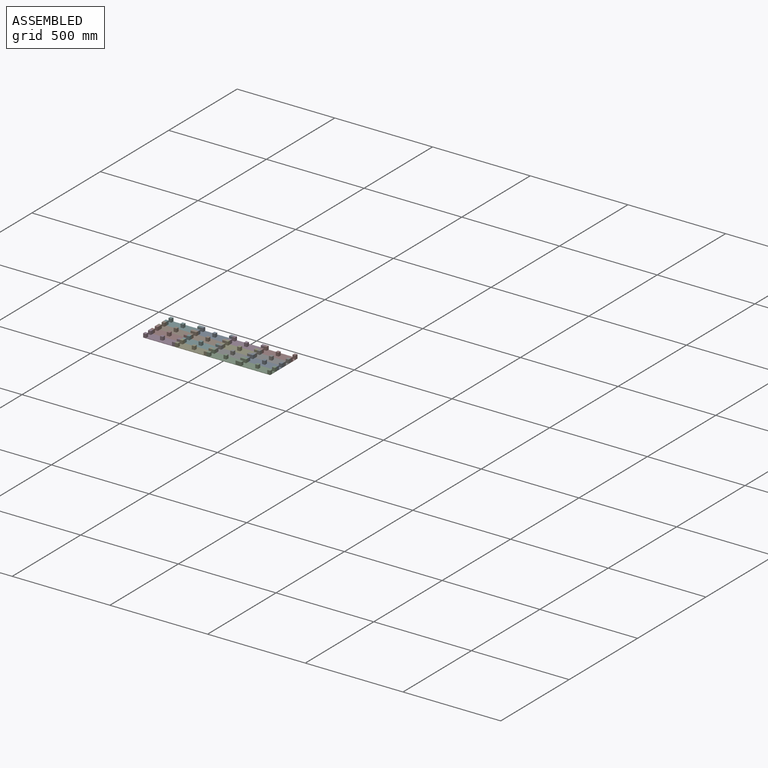
[diagram: assembled view]
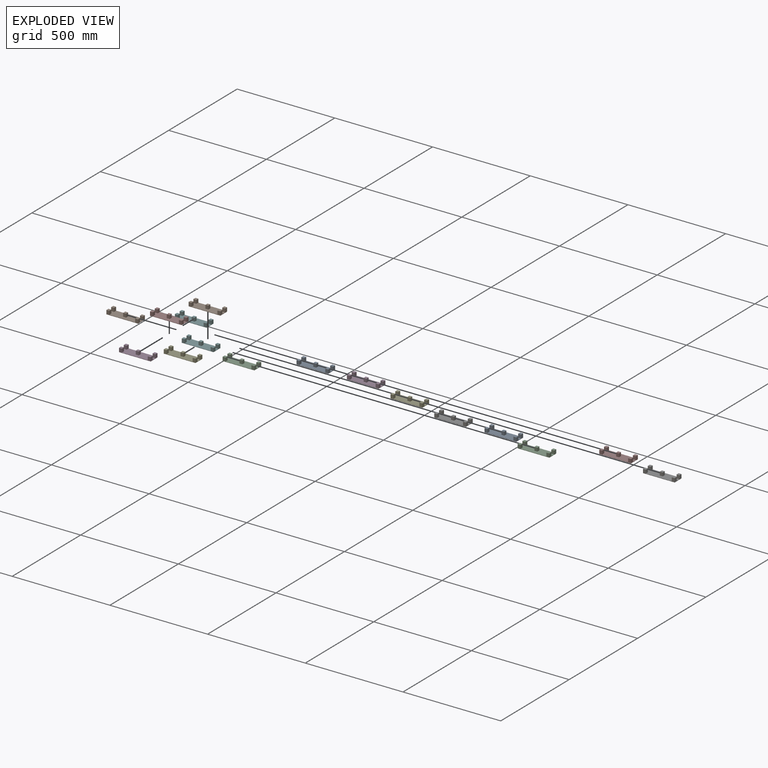
[diagram: exploded view]
GUIDED TOUR — MATED ASSEMBLY (Onshape document 43a5d662e0f2bef0330cf0e0, AutoMate assembly 43a5d662e0f2bef0330cf0e0_22efb81c4c36f7b227dcf2d1_d20b33c5dd49373e04170e35_default)

This assembly has 16 components, labeled P0..P15 below (a component is one placed occurrence of a part; the same part can appear more than once), held together by 15 mates. A mate is a constraint between two components; its type names the relative motion it leaves free:
  FASTENED — locks the two components together rigidly (no relative motion).
Axis/direction vectors are unit vectors and 'through' points are millimeter coordinates, both in the assembly's world frame.

MATES
  1. FASTENED "Fastened 6": P9 <-> P1, direction (1.000, 0.000, 0.000) through (266.22, 362.22, 58.80) mm
  2. FASTENED "Fastened 5": P7 <-> P13, direction (1.000, 0.000, 0.000) through (266.22, 312.22, 58.80) mm
  3. FASTENED "Fastened 7": P5 <-> P8, direction (1.000, 0.000, 0.000) through (266.22, 412.22, 58.80) mm
  4. FASTENED "Fastened 4": P11 <-> P12, direction (0.000, -1.000, 0.000) through (266.22, 262.22, 56.80) mm
  5. FASTENED "Fastened 1": P11 <-> P7, direction (0.000, 1.000, 0.000) through (184.97, 287.22, 64.04) mm
  6. FASTENED "Fastened 2": P7 <-> P9, direction (0.000, 1.000, 0.000) through (184.97, 337.22, 58.80) mm
  7. FASTENED "Fastened 10": P6 <-> P13, direction (-1.000, 0.000, 0.000) through (428.72, 312.22, 58.80) mm
  8. FASTENED "Fastened 3": P9 <-> P5, direction (0.000, 1.000, 0.000) through (184.97, 387.22, 58.80) mm
  9. FASTENED "Fastened 8": P8 <-> P3, direction (1.000, 0.000, 0.000) through (428.72, 412.22, 58.80) mm
  10. FASTENED "Fastened 15": P3 <-> P15, direction (1.000, 0.000, 0.000) through (591.22, 412.22, 58.80) mm
  11. FASTENED "Fastened 14": P4 <-> P14, direction (1.000, 0.000, 0.000) through (591.22, 362.22, 58.80) mm
  12. FASTENED "Fastened 11": P12 <-> P2, direction (1.000, 0.000, 0.000) through (428.72, 262.22, 58.80) mm
  13. FASTENED "Fastened 13": P6 <-> P0, direction (1.000, 0.000, 0.000) through (591.22, 312.22, 58.80) mm
  14. FASTENED "Fastened 9": P1 <-> P4, direction (1.000, 0.000, 0.000) through (428.72, 362.22, 58.80) mm
  15. FASTENED "Fastened 12": P2 <-> P10, direction (1.000, 0.000, 0.000) through (591.22, 262.22, 58.80) mm

ASSEMBLY ORDER
  1. P13 — the base component [order verified]
  2. P12 [order verified]
  3. P2 [order verified]
  4. P1 [order verified]
  5. P11 [order verified]
  6. P8 [order verified]
  7. P7 [order verified]
  8. P9 [order verified]
  9. P5 [order verified]
  10. P3 [order verified]
  11. P4 [order verified]
  12. P6 [order verified]
  13. P0 [order verified]
  14. P10 [order verified]
  15. P14 [order verified]
  16. P15 [order verified]
Order-tag legend:
  [order verified] — this step's position reverses a verified removal order: the component was checked to insert without passing through the ones already placed.

Of the 16 components, 16 carry the full construction recipe — the FeatureScript program that regenerates the part's solid from scratch; the rest are supplied as boundary geometry only.
Because this assembly has more than 12 components, the tour below covers the 12 most significant ones individually (every recipe-attached component first, then the largest by part volume), in assembly order; the remaining 4 are summarized together in a grouped section at the end.
Each toured component is shown spotlighted twice — in the assembled view, then in the exploded view, where a leader line traces a displaced component back to its assembled socket (saturated green if recipe-attached, orange if geometry-only; every other component desaturated gray) — followed by its recipe or geometry summary and the mates that hold it.
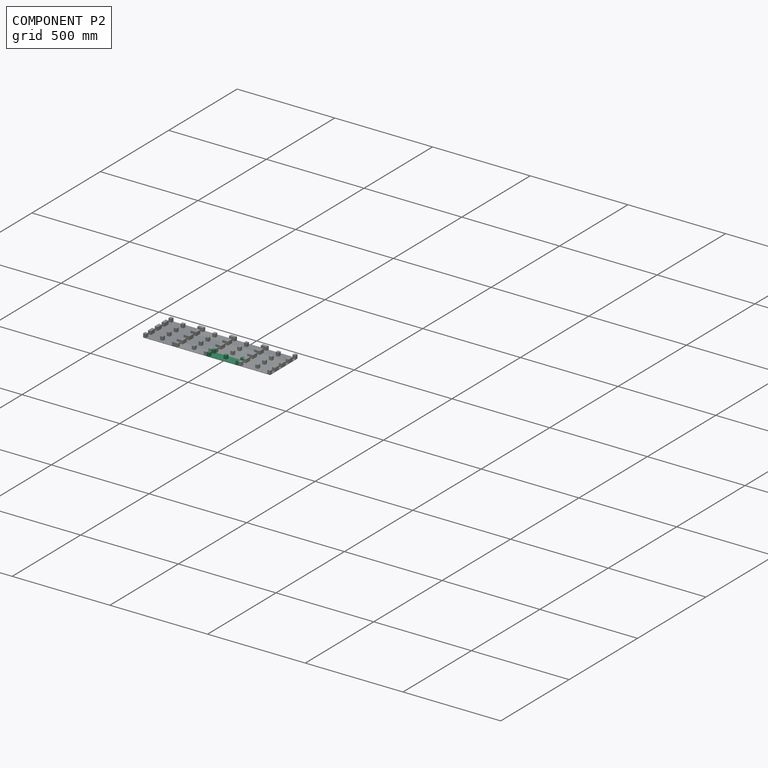
[diagram: component P2 — assembled]
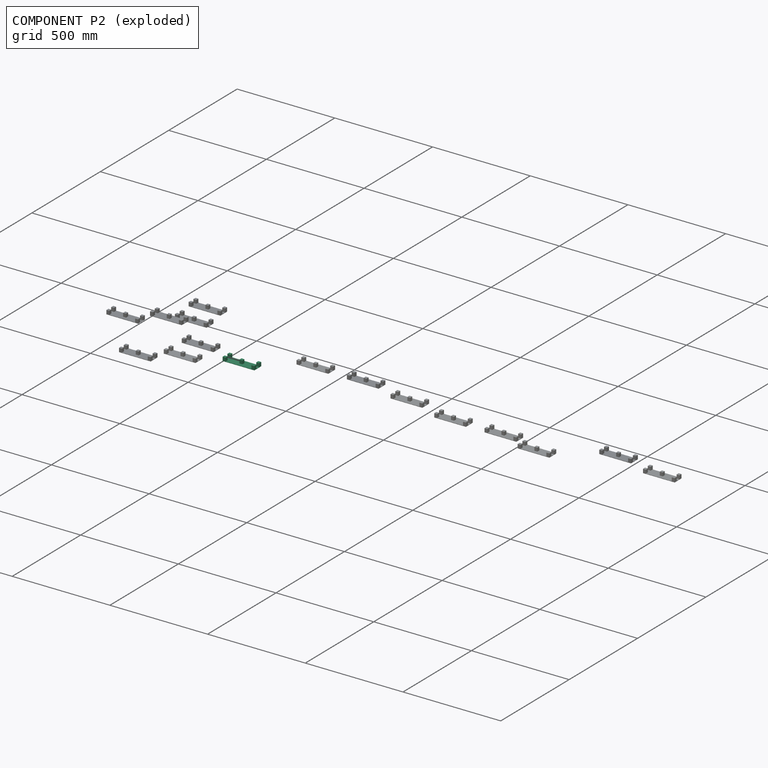
[diagram: component P2 — exploded]
COMPONENT P2 — same part as P0 (CADFS 00497150); its construction recipe is shown at P0.
Held by: FASTENED mate "Fastened 11" to P12; FASTENED mate "Fastened 12" to P10.
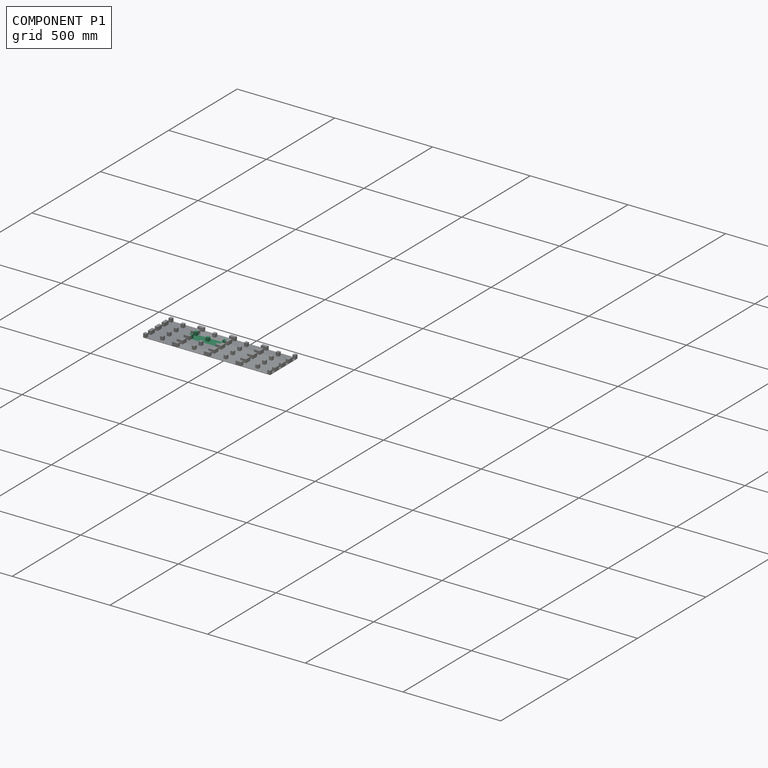
[diagram: component P1 — assembled]
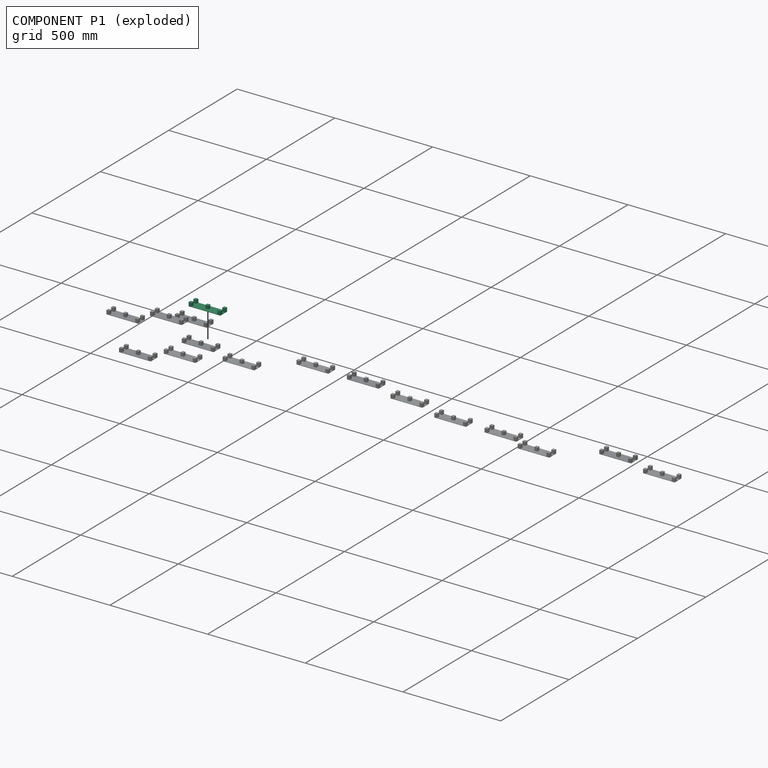
[diagram: component P1 — exploded]
COMPONENT P1 — same part as P0 (CADFS 00497150); its construction recipe is shown at P0.
Held by: FASTENED mate "Fastened 6" to P9; FASTENED mate "Fastened 9" to P4.
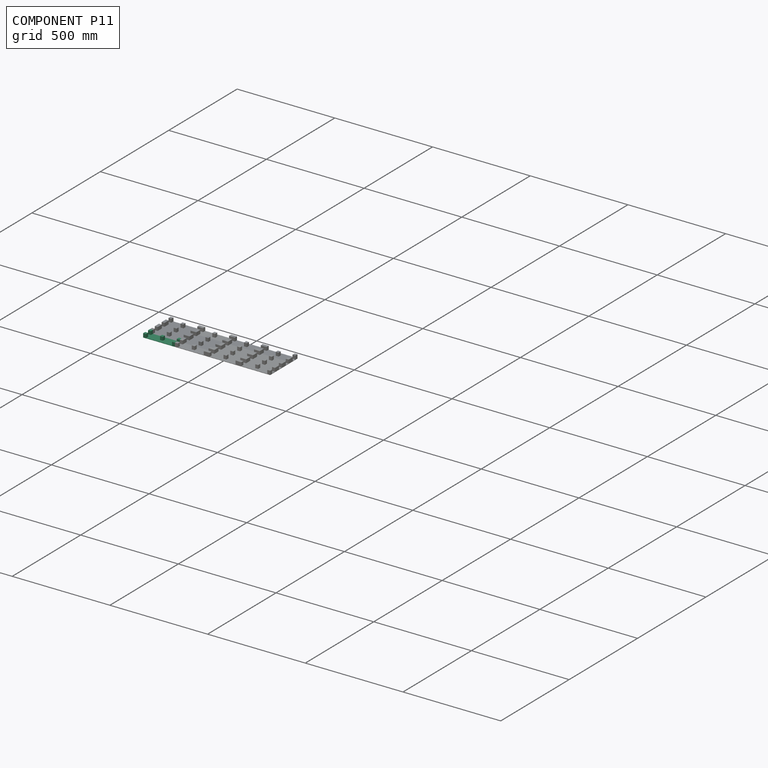
[diagram: component P11 — assembled]
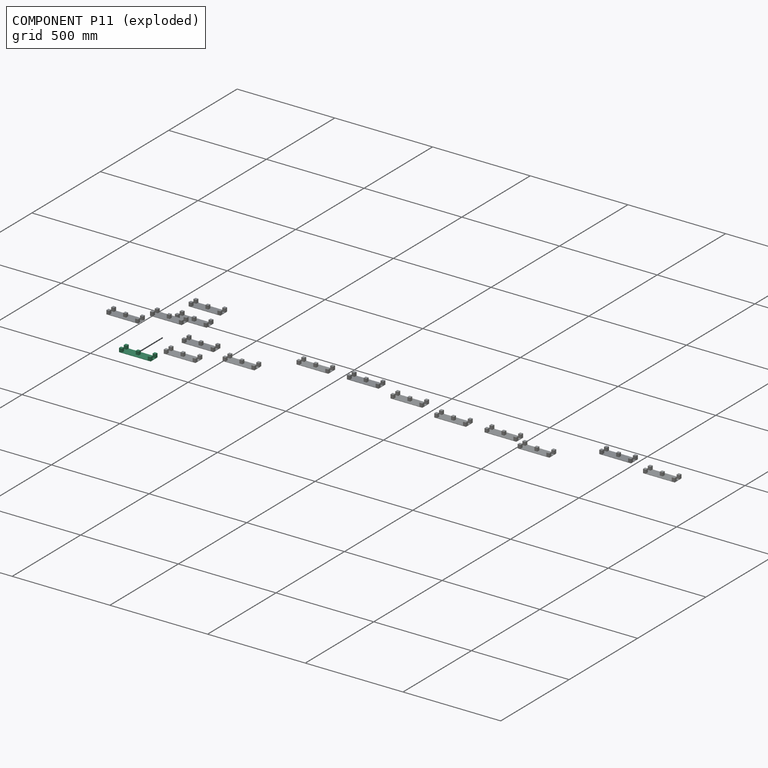
[diagram: component P11 — exploded]
COMPONENT P11 — same part as P0 (CADFS 00497150); its construction recipe is shown at P0.
Held by: FASTENED mate "Fastened 4" to P12; FASTENED mate "Fastened 1" to P7.
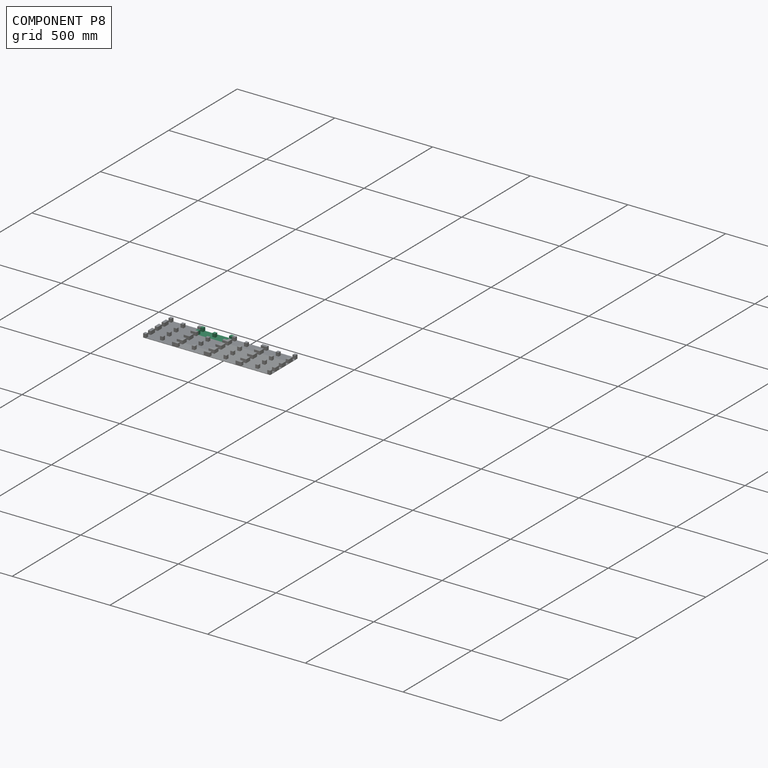
[diagram: component P8 — assembled]
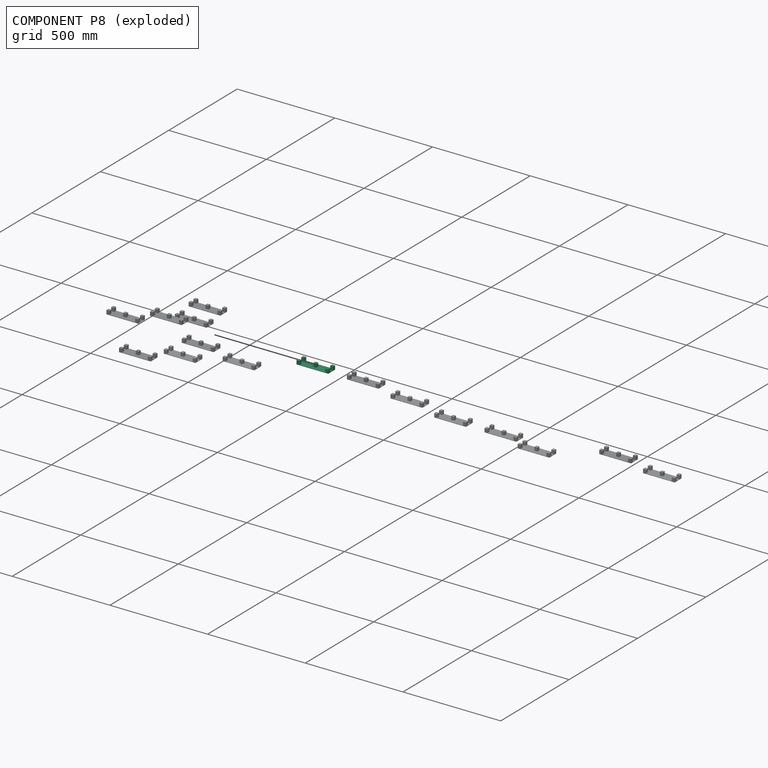
[diagram: component P8 — exploded]
COMPONENT P8 — same part as P0 (CADFS 00497150); its construction recipe is shown at P0.
Held by: FASTENED mate "Fastened 7" to P5; FASTENED mate "Fastened 8" to P3.
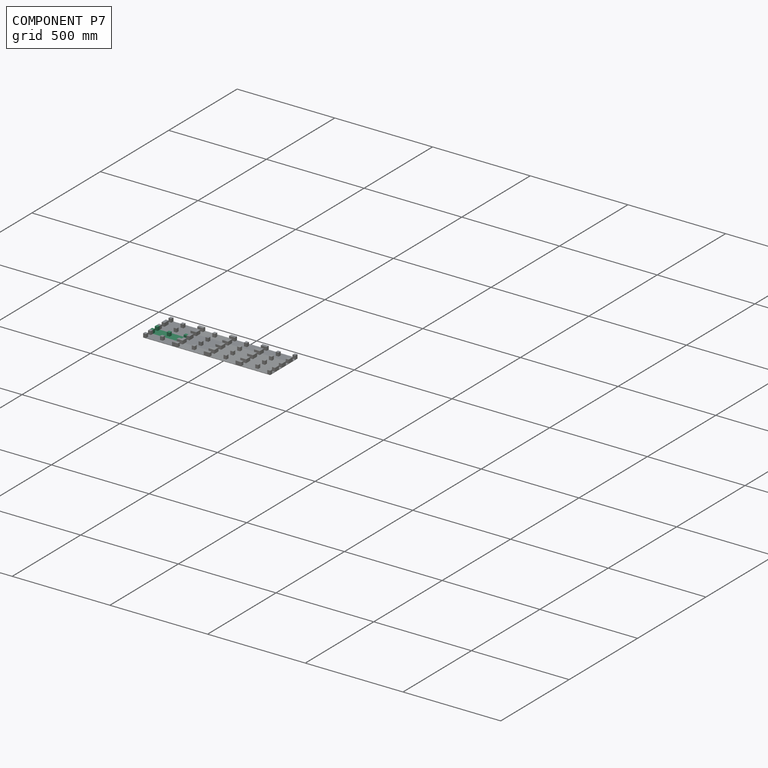
[diagram: component P7 — assembled]
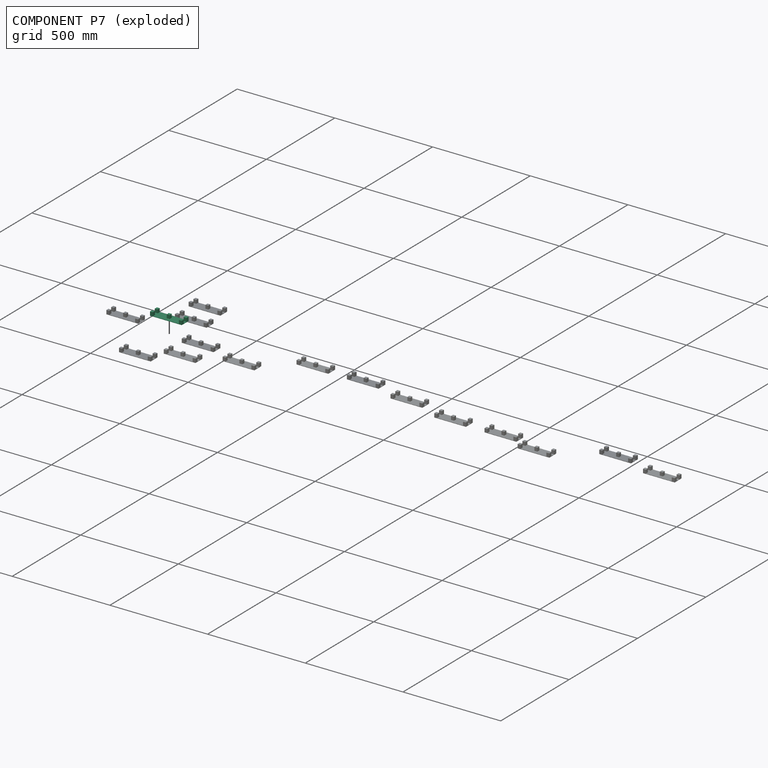
[diagram: component P7 — exploded]
COMPONENT P7 — same part as P0 (CADFS 00497150); its construction recipe is shown at P0.
Held by: FASTENED mate "Fastened 5" to P13; FASTENED mate "Fastened 1" to P11; FASTENED mate "Fastened 2" to P9.
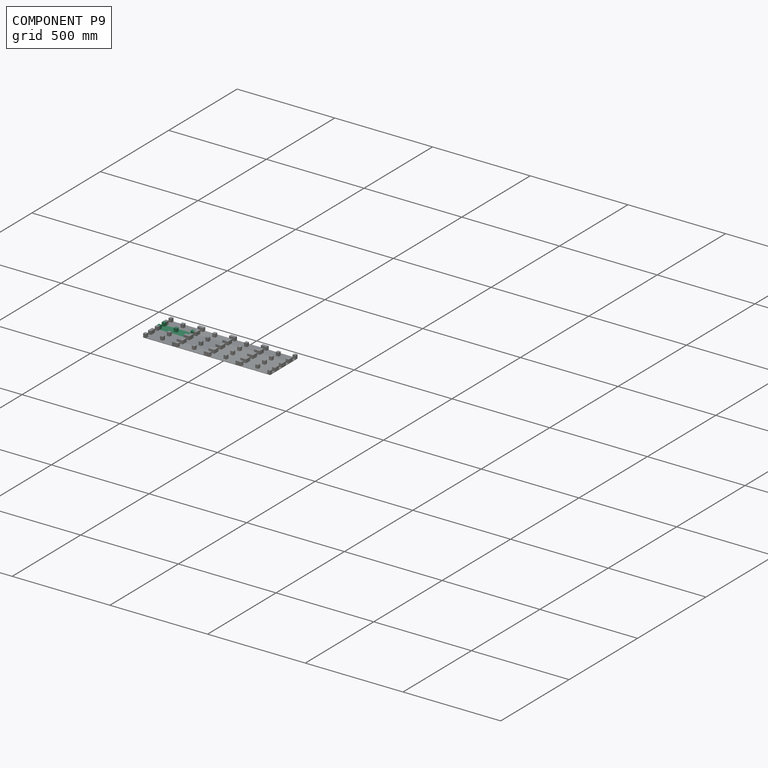
[diagram: component P9 — assembled]
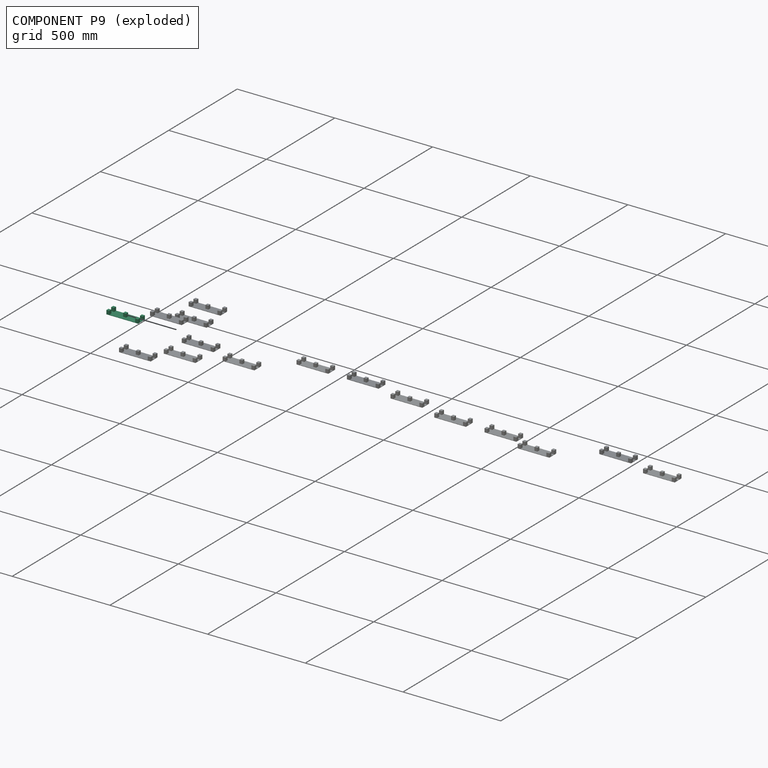
[diagram: component P9 — exploded]
COMPONENT P9 — same part as P0 (CADFS 00497150); its construction recipe is shown at P0.
Held by: FASTENED mate "Fastened 6" to P1; FASTENED mate "Fastened 2" to P7; FASTENED mate "Fastened 3" to P5.
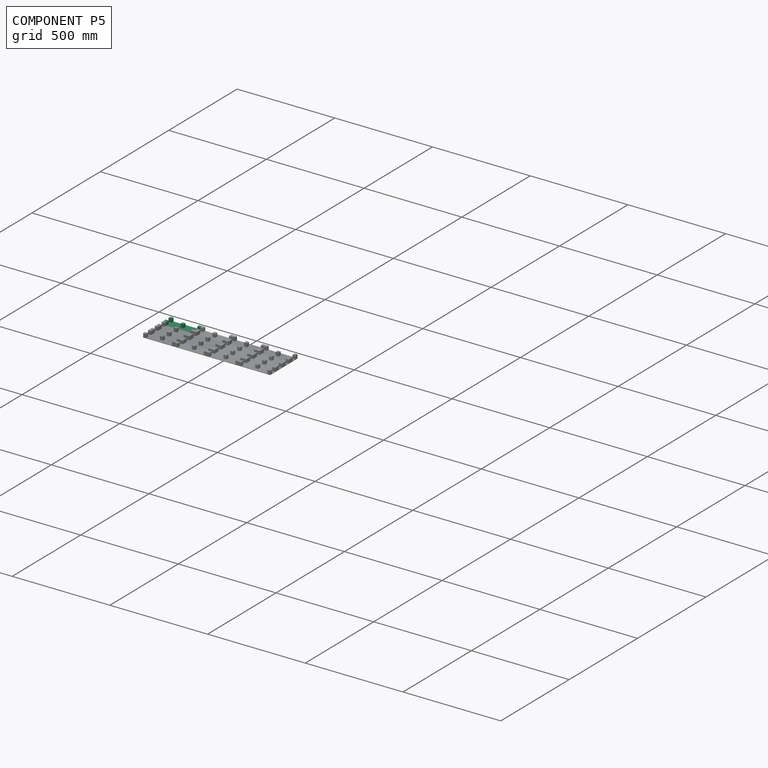
[diagram: component P5 — assembled]
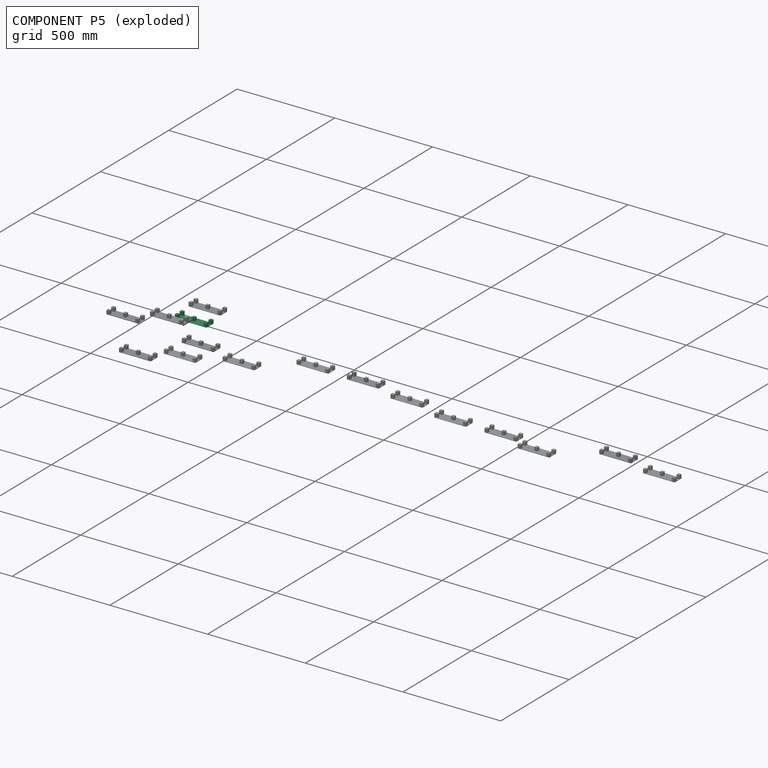
[diagram: component P5 — exploded]
COMPONENT P5 — same part as P0 (CADFS 00497150); its construction recipe is shown at P0.
Held by: FASTENED mate "Fastened 7" to P8; FASTENED mate "Fastened 3" to P9.
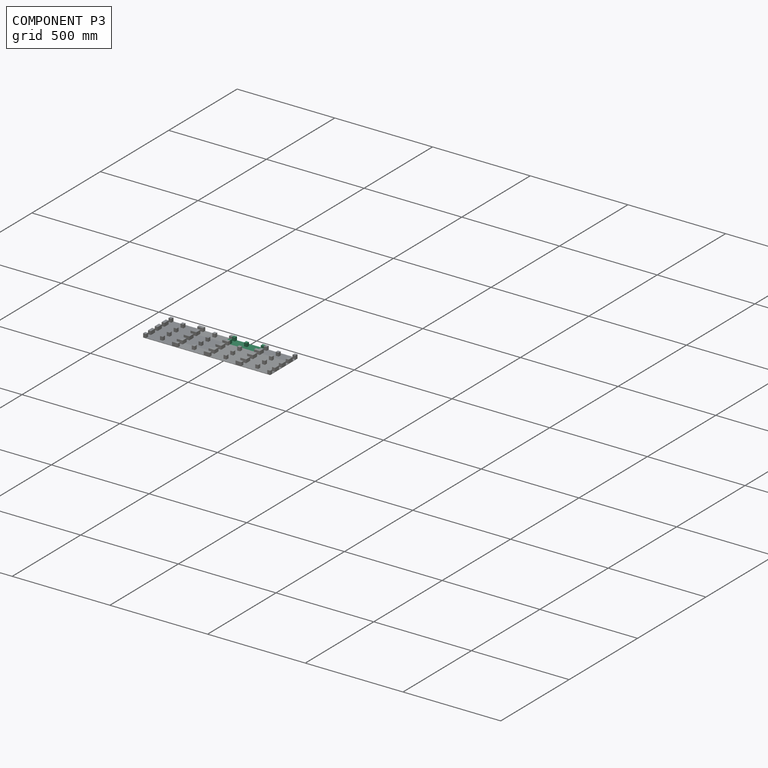
[diagram: component P3 — assembled]
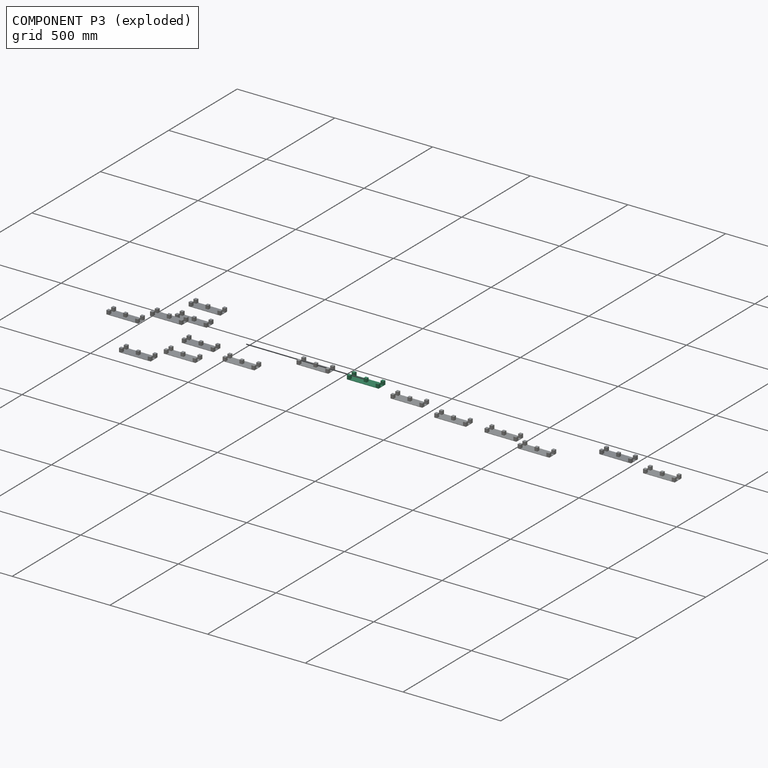
[diagram: component P3 — exploded]
COMPONENT P3 — same part as P0 (CADFS 00497150); its construction recipe is shown at P0.
Held by: FASTENED mate "Fastened 8" to P8; FASTENED mate "Fastened 15" to P15.
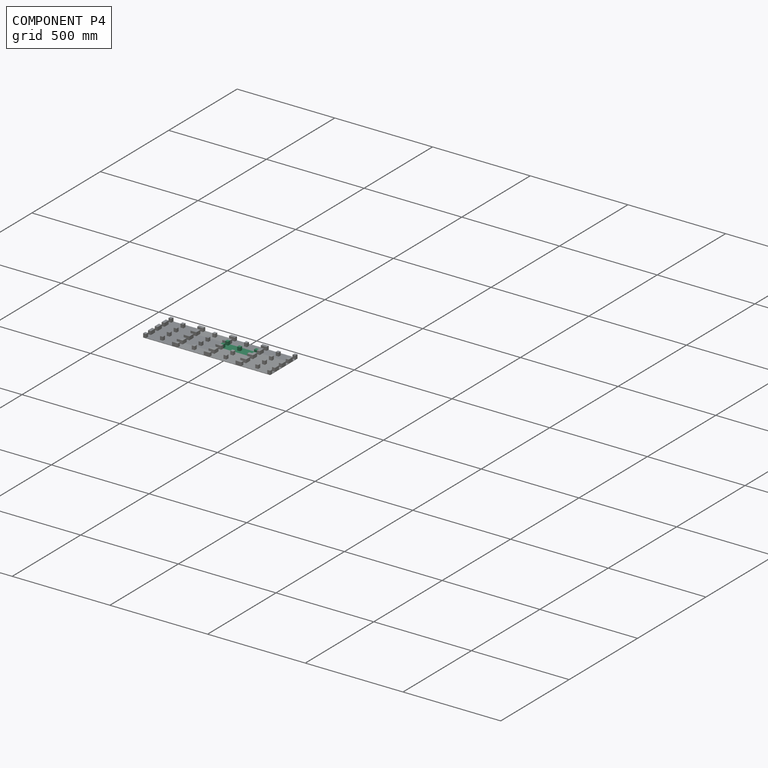
[diagram: component P4 — assembled]
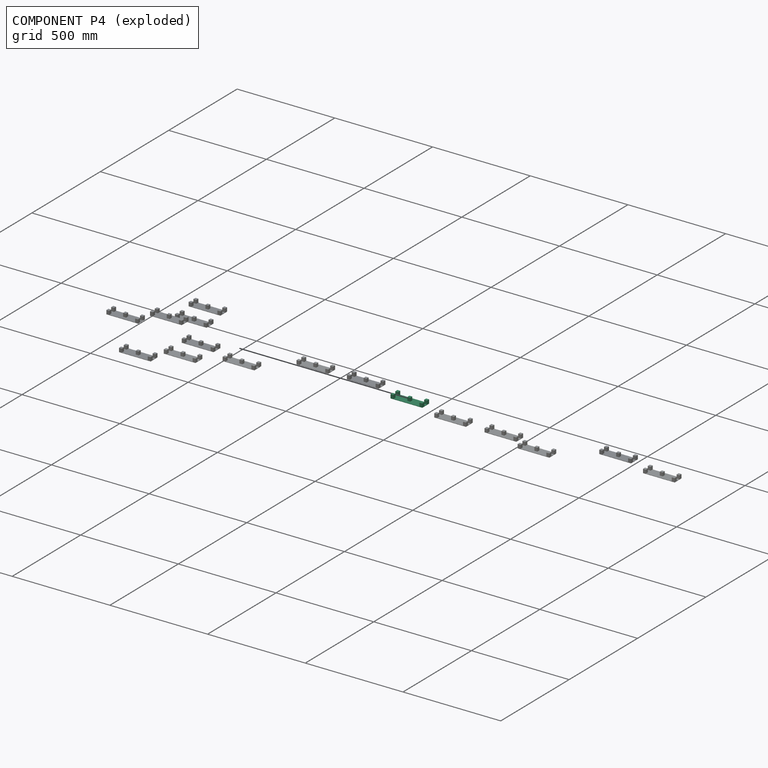
[diagram: component P4 — exploded]
COMPONENT P4 — same part as P0 (CADFS 00497150); its construction recipe is shown at P0.
Held by: FASTENED mate "Fastened 14" to P14; FASTENED mate "Fastened 9" to P1.
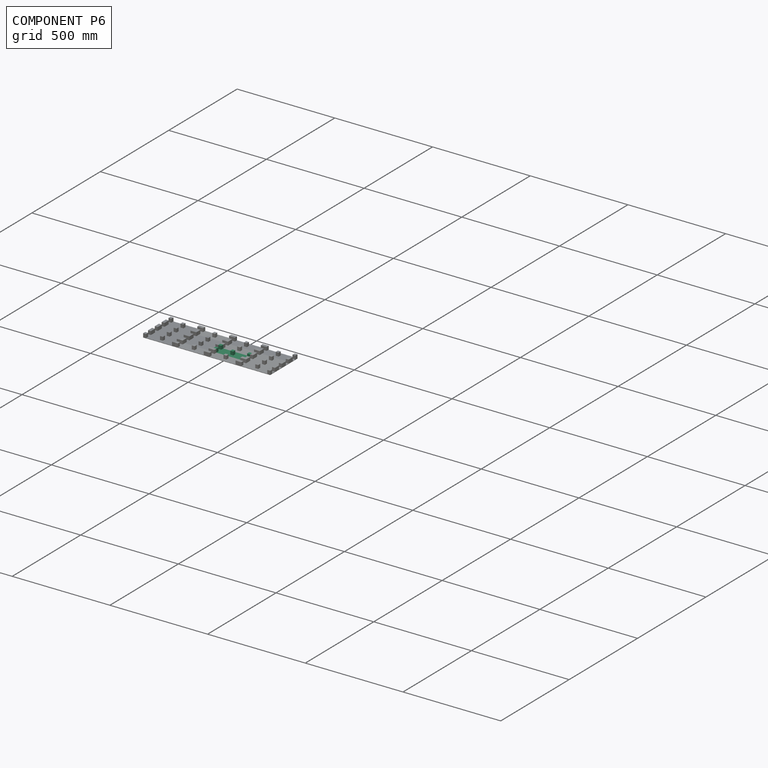
[diagram: component P6 — assembled]
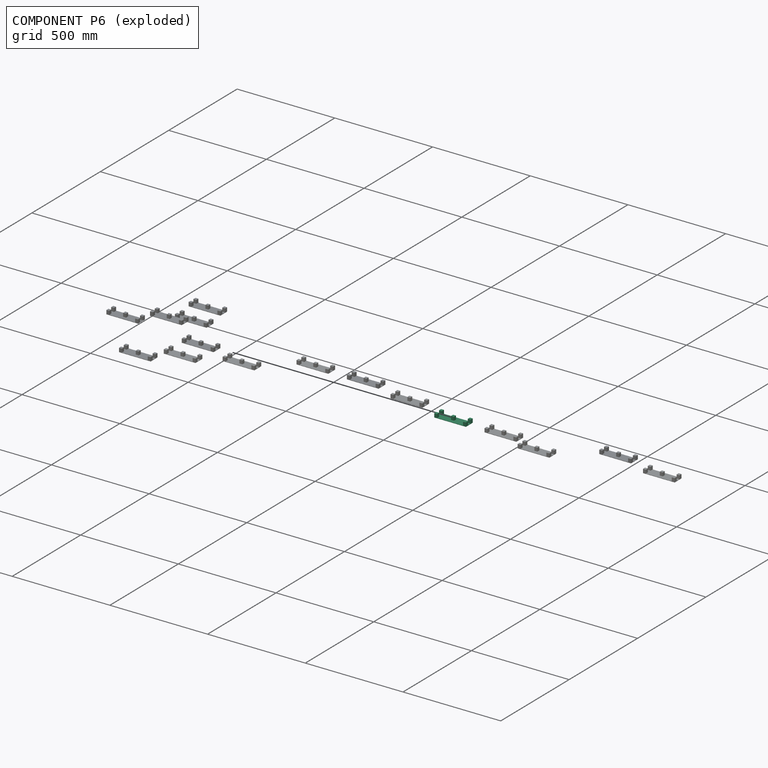
[diagram: component P6 — exploded]
COMPONENT P6 — same part as P0 (CADFS 00497150); its construction recipe is shown at P0.
Held by: FASTENED mate "Fastened 10" to P13; FASTENED mate "Fastened 13" to P0.
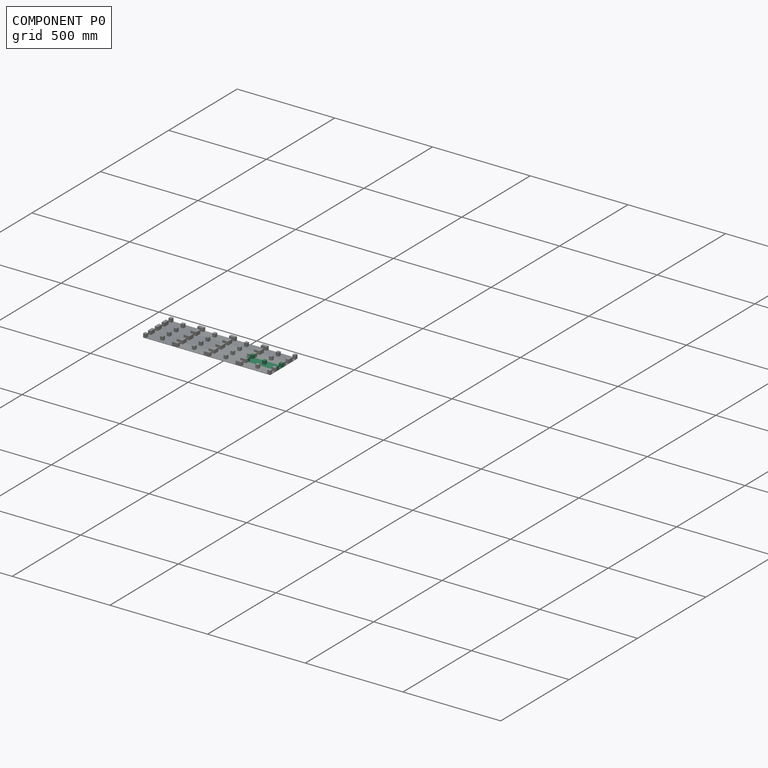
[diagram: component P0 — assembled]
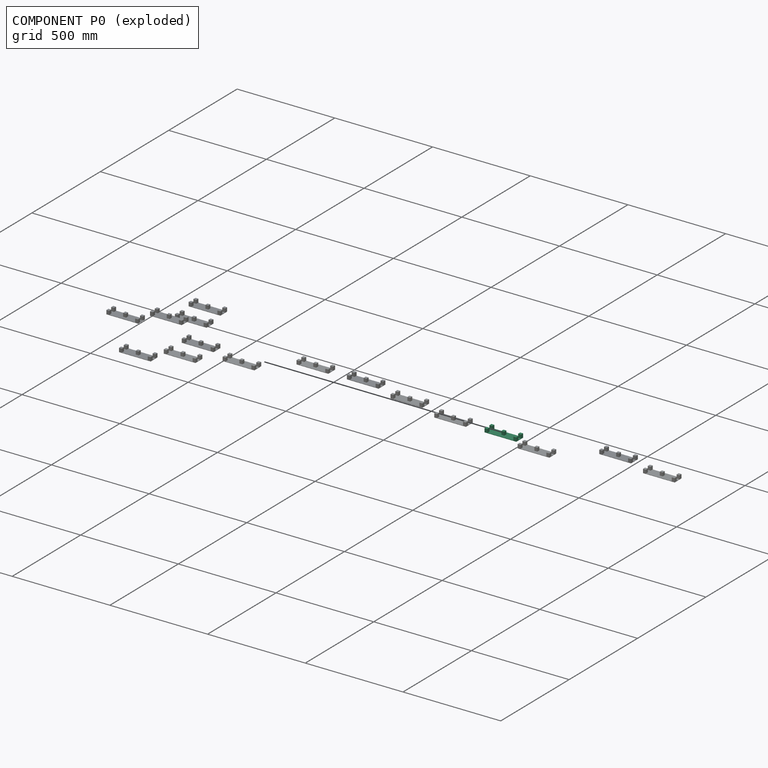
[diagram: component P0 — exploded]
COMPONENT P0 — recipe-attached (CADFS 00497150, mesh-verified: the recipe's output STEP matches this component's geometry to below the mesh-comparison resolution (tessellation chordal tolerance ~0.257 mm)).
Held by: FASTENED mate "Fastened 13" to P6.
Construction recipe (FeatureScript — the CAD program that rebuilds this solid; sketch coordinates are in the units given by the * unit suffixes, e.g. mm):

FeatureScript 1511;
import(path : "onshape/std/geometry.fs", version : "1511.0");
import(path : "onshape/std/common.fs", version : "1511.0");
const mm = millimeter;
const VERTEX = EntityType.VERTEX;
const EDGE = EntityType.EDGE;
const FACE = EntityType.FACE;
const BODY = EntityType.BODY;
function v(x, y){return vector(x, y);}
function OD(order){return orderDisambiguation(order);}
function OSD(set){return originalSetDisambiguation(set);}
function TD(topology){return topologyDisambiguation(topology);}
function TDD(query){return trueDependencyDisambiguation(query);}
function sQuery(a, b, c) {return sketchEntityQuery(a, b, c);}

annotation { "Feature Type Name" : "Feature", "Feature Type Description" : "" }
export const myFeature = defineFeature(function(context is Context, id is Id, definition is map)
    precondition{}
    {
        {
            var Q0;
            Q0=qCreatedBy(makeId("Top.planeOp"),FACE);
            var sketch = newSketch(context, id + "F0", { "sketchPlane" : qUnion([Q0])});
            skLineSegment(sketch, "E0.bottom", {"start": v(-81.25, 25) * mm, "end": v(81.25, 25) * mm});
            skLineSegment(sketch, "E0.top", {"start": v(-81.25, -25) * mm, "end": v(81.25, -25) * mm});
            skLineSegment(sketch, "E0.left", {"start": v(-81.25, 25) * mm, "end": v(-81.25, -25) * mm});
            skLineSegment(sketch, "E0.right", {"start": v(81.25, 25) * mm, "end": v(81.25, -25) * mm});
            skPoint(sketch, "E0.middle", {"position": v(0, 0) * mm});
            skSolve(sketch);
        }
        {
            var Q0;
            Q0 = qSketchRegion(id + "F0", true);
            extrude(context, id + "F1", {"entities" : qUnion([Q0]), "depth" : 2 * mm});
        }
        {
            var Q0;
            Q0=makeQuery(id+"F1.opExtrude","CAP_FACE",FACE,{"disambiguationData":[OSD([sQuery(id+"F0.wireOp",EDGE,"E0.bottom"),sQuery(id+"F0.wireOp",EDGE,"E0.top"),sQuery(id+"F0.wireOp",EDGE,"E0.left"),sQuery(id+"F0.wireOp",EDGE,"E0.right")])],"isStart":false});
            var sketch = newSketch(context, id + "F2", { "sketchPlane" : qUnion([Q0])});
            skLineSegment(sketch, "E1.bottom", {"start": v(-81.25, -25) * mm, "end": v(-66.25, -25) * mm});
            skLineSegment(sketch, "E1.top", {"start": v(-81.25, -10) * mm, "end": v(-66.25, -10) * mm});
            skLineSegment(sketch, "E1.left", {"start": v(-81.25, -25) * mm, "end": v(-81.25, -10) * mm});
            skLineSegment(sketch, "E1.right", {"start": v(-66.25, -25) * mm, "end": v(-66.25, -10) * mm});
            skLineSegment(sketch, "E2.bottom", {"start": v(-81.25, 25) * mm, "end": v(-66.25, 25) * mm});
            skLineSegment(sketch, "E2.top", {"start": v(-81.25, 10) * mm, "end": v(-66.25, 10) * mm});
            skLineSegment(sketch, "E2.left", {"start": v(-81.25, 25) * mm, "end": v(-81.25, 10) * mm});
            skLineSegment(sketch, "E2.right", {"start": v(-66.25, 25) * mm, "end": v(-66.25, 10) * mm});
            skLineSegment(sketch, "E3.bottom", {"start": v(81.25, 25) * mm, "end": v(66.25, 25) * mm});
            skLineSegment(sketch, "E3.top", {"start": v(81.25, 10) * mm, "end": v(66.25, 10) * mm});
            skLineSegment(sketch, "E3.left", {"start": v(81.25, 25) * mm, "end": v(81.25, 10) * mm});
            skLineSegment(sketch, "E3.right", {"start": v(66.25, 25) * mm, "end": v(66.25, 10) * mm});
            skLineSegment(sketch, "E4.bottom", {"start": v(81.25, -25) * mm, "end": v(66.25, -25) * mm});
            skLineSegment(sketch, "E4.top", {"start": v(81.25, -10) * mm, "end": v(66.25, -10) * mm});
            skLineSegment(sketch, "E4.left", {"start": v(81.25, -25) * mm, "end": v(81.25, -10) * mm});
            skLineSegment(sketch, "E4.right", {"start": v(66.25, -25) * mm, "end": v(66.25, -10) * mm});
            skLineSegment(sketch, "E5.bottom", {"start": v(7.5, 7.5) * mm, "end": v(-7.5, 7.5) * mm});
            skLineSegment(sketch, "E5.top", {"start": v(7.5, -7.5) * mm, "end": v(-7.5, -7.5) * mm});
            skLineSegment(sketch, "E5.left", {"start": v(7.5, 7.5) * mm, "end": v(7.5, -7.5) * mm});
            skLineSegment(sketch, "E5.right", {"start": v(-7.5, 7.5) * mm, "end": v(-7.5, -7.5) * mm});
            skPoint(sketch, "E5.middle", {"position": v(0, 0) * mm});
            skSolve(sketch);
        }
        {
            var Q0;
            Q0 = qSketchRegion(id + "F2", true);
            extrude(context, id + "F3", {"entities" : qUnion([Q0]), "operationType" : NewBodyOperationType.ADD, "depth" : 18 * mm});
        }
    });
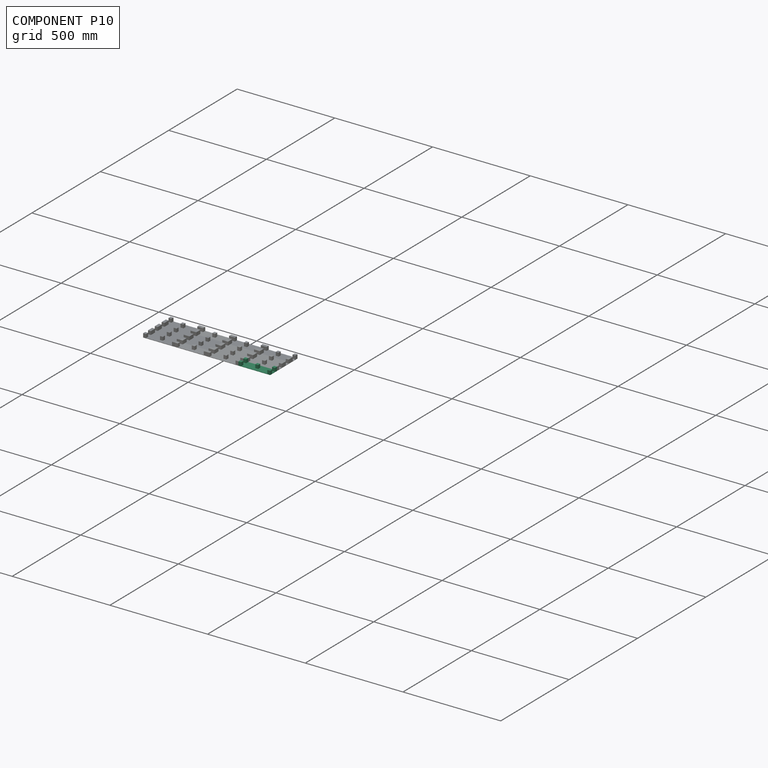
[diagram: component P10 — assembled]
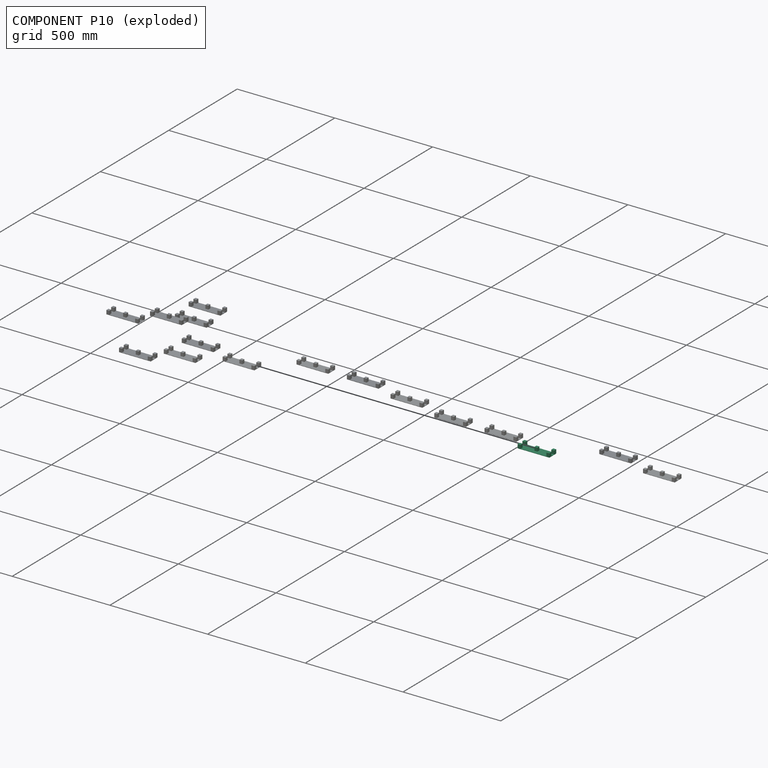
[diagram: component P10 — exploded]
COMPONENT P10 — same part as P0 (CADFS 00497150); its construction recipe is shown at P0.
Held by: FASTENED mate "Fastened 12" to P2.
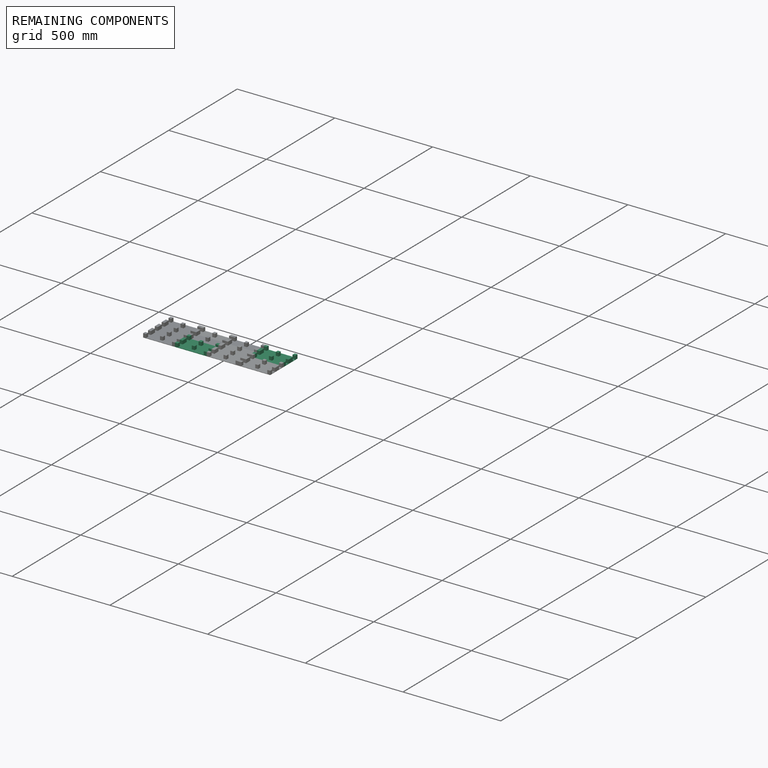
[diagram: remaining components — assembled]
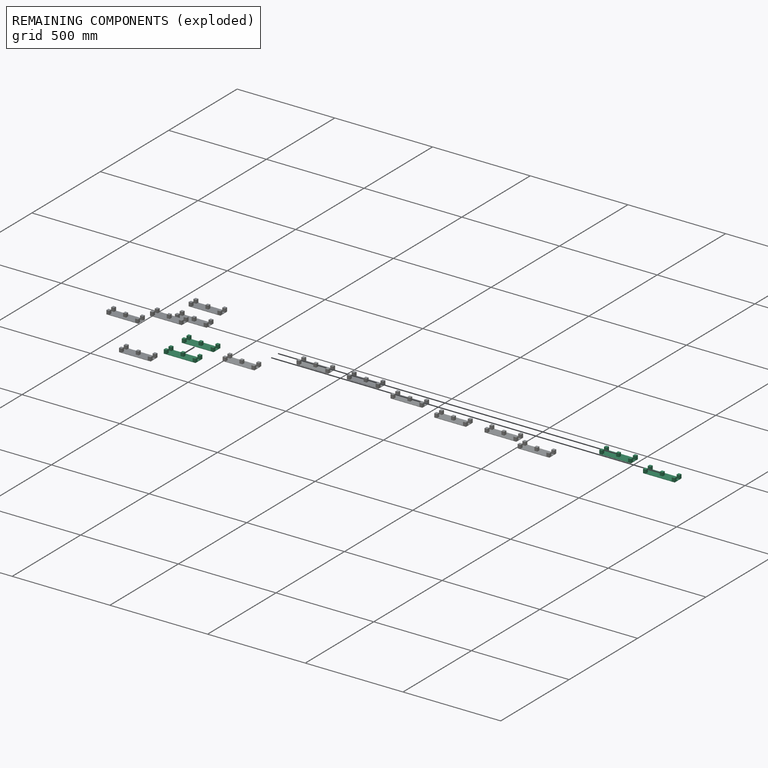
[diagram: remaining components — exploded]
REMAINING COMPONENTS (grouped) — the 4 components below fall outside the per-component tour by the significance rule stated above; both spotlight views highlight the whole group.
  P13: bounding box 162.5 x 50.0 x 20.0 mm, volume 36500 mm^3. Recipe-attached (CADFS 00497150; recipe not printed under the significance rule). Held by: FASTENED mate "Fastened 5" to P7; FASTENED mate "Fastened 10" to P6.
  P12: bounding box 162.5 x 50.0 x 20.0 mm, volume 36500 mm^3. Recipe-attached (CADFS 00497150; recipe not printed under the significance rule). Held by: FASTENED mate "Fastened 4" to P11; FASTENED mate "Fastened 11" to P2.
  P14: bounding box 162.5 x 50.0 x 20.0 mm, volume 36500 mm^3. Recipe-attached (CADFS 00497150; recipe not printed under the significance rule). Held by: FASTENED mate "Fastened 14" to P4.
  P15: bounding box 162.5 x 50.0 x 20.0 mm, volume 36500 mm^3. Recipe-attached (CADFS 00497150; recipe not printed under the significance rule). Held by: FASTENED mate "Fastened 15" to P3.
PROVENANCE & LICENSES
Assembly (occurrences, transforms, mates, per-part STEP geometry): AutoMate dataset, Zenodo record 7776208, CC0.
Construction recipes: CADFS (HuggingFace VladPyatov/CADFS, CC-BY-4.0, layered over the ABC dataset), FeatureScript reconstruction programs keyed by ABC model id.
Join: ABC meta listings map ABC model id -> Onshape documentId; within a shared document, parts are matched by geometric signature (bounding-box dims + volume at 0.1% relative tolerance, exact B-rep face/solid counts).
Verification: 16 of this assembly's 16 components carry a recipe attachment, and every attachment is mesh-verified: the CADFS STEP and the AutoMate member STEP were compared as meshes in their shared local frame (symmetric sampled-point-to-mesh distance); worst across the 16 attachments: below the mesh-comparison resolution (tessellation chordal tolerance ~0.257 mm) on a 171 mm part.
Renders: orthographic iso camera (az 35 / el 25); the floor grid conveys scale (grid pitch printed in each image; no ruler). In the exploded view each component is displaced by its stored offset vector: the offsets alone carry the explosion direction (mate normal/axis signs are not orientation cues and do not encode it), and separation distances are assigned per mate-chain, not proportionally to assembly-order depth.
